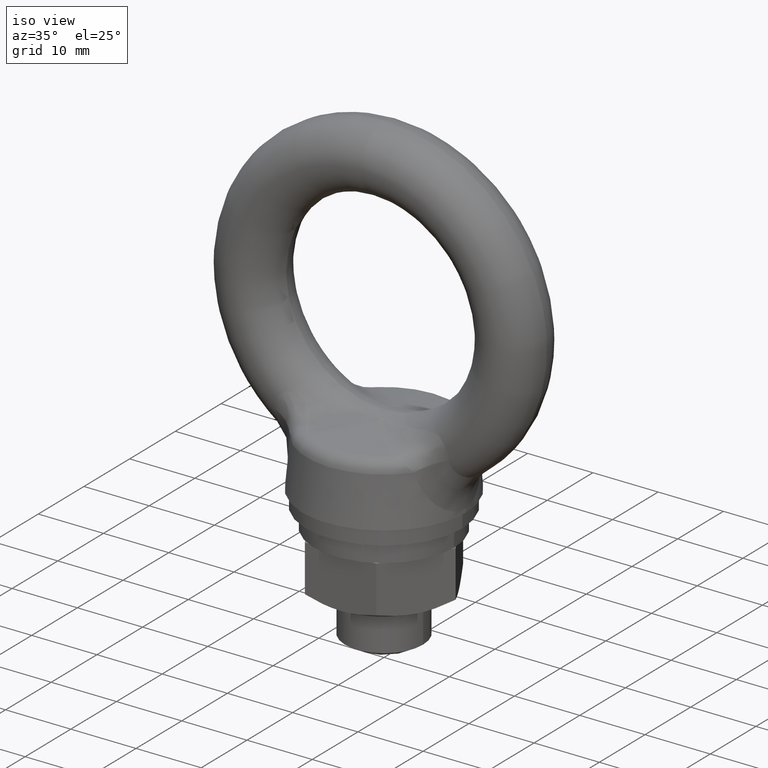
[diagram: clean part render]
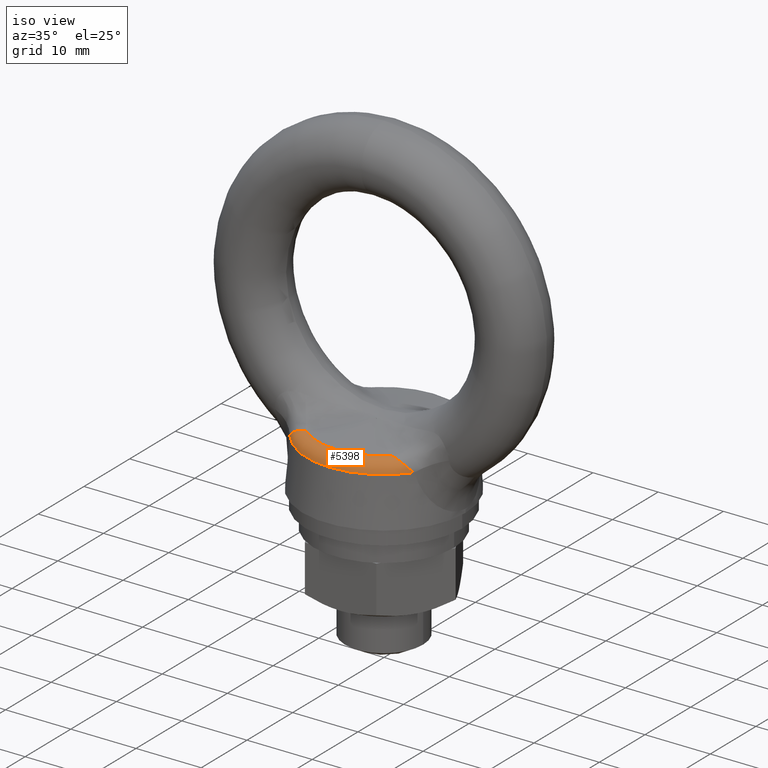
[diagram: same view with one face highlighted and labeled with its STEP entity id]
A machine part, iso view. The second image highlights one B-rep face of the part: STEP entity #5398.
In plain terms, the highlighted toroidal blend (fillet) surface has major radius 9.8547 mm and minor (blend) radius 2 mm.
Its self-contained STEP definition (entity closure, byte-faithful):
#449 = DIRECTION ( 'NONE',  ( 0.0000000000000000000, 0.0000000000000000000, 1.000000000000000000 ) ) ;
#450 = CARTESIAN_POINT ( 'NONE',  ( 0.0000000000000000000, 0.0000000000000000000, -16.74023616556295100 ) ) ;
#451 = AXIS2_PLACEMENT_3D ( 'NONE', #450, #449, #481 ) ;
#452 = CIRCLE ( 'NONE', #451, 10.19135768220194100 ) ;
#453 = DIRECTION ( 'NONE',  ( 1.000000000000000000, 0.0000000000000000000, 0.0000000000000000000 ) ) ;
#454 = DIRECTION ( 'NONE',  ( 0.0000000000000000000, 0.0000000000000000000, 1.000000000000000000 ) ) ;
#479 = CARTESIAN_POINT ( 'NONE',  ( 6.616645683539579700, -7.751372220779610500, -16.74023616556295100 ) ) ;
#480 = CARTESIAN_POINT ( 'NONE',  ( -6.616645683539579700, -7.751372220779610500, -16.74023616556295100 ) ) ;
#481 = DIRECTION ( 'NONE',  ( 1.000000000000000000, 0.0000000000000000000, 0.0000000000000000000 ) ) ;
#536 = CARTESIAN_POINT ( 'NONE',  ( 0.0000000000000000000, 0.0000000000000000000, -18.71170104866870100 ) ) ;
#537 = AXIS2_PLACEMENT_3D ( 'NONE', #536, #454, #453 ) ;
#538 = TOROIDAL_SURFACE ( 'NONE', #537, 9.854718090530131000, 2.000000000000000000 ) ;
#539 = FACE_OUTER_BOUND ( 'NONE', #5399, .T. ) ;
#1253 = CARTESIAN_POINT ( 'NONE',  ( -9.537127817778650000, -7.028310572481229800, -18.53738990767994800 ) ) ;
#1254 = DIRECTION ( 'NONE',  ( 1.000000000000000000, 0.0000000000000000000, 0.0000000000000000000 ) ) ;
#1255 = DIRECTION ( 'NONE',  ( 0.0000000000000000000, 0.0000000000000000000, -1.000000000000000000 ) ) ;
#1256 = CARTESIAN_POINT ( 'NONE',  ( 0.0000000000000000000, 0.0000000000000000000, -18.53738990767994800 ) ) ;
#1257 = AXIS2_PLACEMENT_3D ( 'NONE', #1256, #1255, #1254 ) ;
#1258 = CIRCLE ( 'NONE', #1257, 11.84710751685402000 ) ;
#1263 = CARTESIAN_POINT ( 'NONE',  ( 9.537127817778650000, -7.028310572481229800, -18.53738990767994800 ) ) ;
#2501 = CARTESIAN_POINT ( 'NONE',  ( -9.537127817778650000, -7.028310572481229800, -18.53738990767994800 ) ) ;
#2502 = CARTESIAN_POINT ( 'NONE',  ( -9.387530256854034900, -7.200739040392232200, -18.33010265895204000 ) ) ;
#2503 = CARTESIAN_POINT ( 'NONE',  ( -9.210486901524483000, -7.346946296539043100, -18.12853105271439000 ) ) ;
#2504 = CARTESIAN_POINT ( 'NONE',  ( -8.799428681623485500, -7.581588835471430700, -17.73487168706547500 ) ) ;
#2505 = CARTESIAN_POINT ( 'NONE',  ( -8.571014422538098600, -7.666058305876177300, -17.54837710882584300 ) ) ;
#2506 = CARTESIAN_POINT ( 'NONE',  ( -8.066797062893675400, -7.765780834802571400, -17.21041175693599000 ) ) ;
#2507 = CARTESIAN_POINT ( 'NONE',  ( -7.796735016101216300, -7.777521810739974800, -17.06314503767733700 ) ) ;
#2508 = CARTESIAN_POINT ( 'NONE',  ( -7.222409335276565500, -7.762224530899469100, -16.84144719434066300 ) ) ;
#2509 = CARTESIAN_POINT ( 'NONE',  ( -6.923499156298799300, -7.738500842341252900, -16.77258283896321000 ) ) ;
#2510 = CARTESIAN_POINT ( 'NONE',  ( -6.616645683539579700, -7.751372220779610500, -16.74023616556295100 ) ) ;
#2511 = B_SPLINE_CURVE_WITH_KNOTS ( 'NONE', 3,
 ( #2510, #2509, #2508, #2507, #2506, #2505, #2504, #2503, #2502, #2501 ),
 .UNSPECIFIED., .F., .F.,
 ( 4, 2, 2, 2, 4 ),
 ( 0.0000000000000000000, 0.0009180277221817911200, 0.001836055444363582200, 0.002754083166545373500, 0.003672110888727164500 ),
 .UNSPECIFIED. ) ;
#5398 = ADVANCED_FACE ( 'NONE', ( #539 ), #538, .T. ) ;
#5399 = EDGE_LOOP ( 'NONE', ( #5489, #5490, #5492, #5429 ) ) ;
#5400 = EDGE_CURVE ( 'NONE', #5401, #5402, #452, .T. ) ;
#5401 = VERTEX_POINT ( 'NONE', #480 ) ;
#5402 = VERTEX_POINT ( 'NONE', #479 ) ;
#5429 = ORIENTED_EDGE ( 'NONE', *, *, #5430, .T. ) ;
#5430 = EDGE_CURVE ( 'NONE', #5460, #5402, #8960, .T. ) ;
#5460 = VERTEX_POINT ( 'NONE', #1263 ) ;
#5462 = EDGE_CURVE ( 'NONE', #5460, #5463, #1258, .T. ) ;
#5463 = VERTEX_POINT ( 'NONE', #1253 ) ;
#5489 = ORIENTED_EDGE ( 'NONE', *, *, #5400, .F. ) ;
#5490 = ORIENTED_EDGE ( 'NONE', *, *, #5491, .T. ) ;
#5491 = EDGE_CURVE ( 'NONE', #5401, #5463, #2511, .T. ) ;
#5492 = ORIENTED_EDGE ( 'NONE', *, *, #5462, .F. ) ;
#8958 = CARTESIAN_POINT ( 'NONE',  ( 9.387522268440289300, -7.200748247961763900, -18.33009158994598300 ) ) ;
#8959 = CARTESIAN_POINT ( 'NONE',  ( 9.537127817778650000, -7.028310572481229800, -18.53738990767994800 ) ) ;
#8960 = B_SPLINE_CURVE_WITH_KNOTS ( 'NONE', 3,
 ( #8959, #8958, #8977, #8976, #8975, #8974, #8973, #8972, #8971, #8970 ),
 .UNSPECIFIED., .F., .F.,
 ( 4, 2, 2, 2, 4 ),
 ( 0.0000000000000000000, 0.0009182618126528876600, 0.001836523625305775300, 0.002754785437958662900, 0.003673047250611550600 ),
 .UNSPECIFIED. ) ;
#8970 = CARTESIAN_POINT ( 'NONE',  ( 6.616645683539579700, -7.751372220779610500, -16.74023616556295100 ) ) ;
#8971 = CARTESIAN_POINT ( 'NONE',  ( 6.923536939672071200, -7.738499257467236900, -16.77258682186235800 ) ) ;
#8972 = CARTESIAN_POINT ( 'NONE',  ( 7.220833170998764300, -7.762129287149928600, -16.84098851945652300 ) ) ;
#8973 = CARTESIAN_POINT ( 'NONE',  ( 7.795344199665845700, -7.777537753763227500, -17.06245918736233200 ) ) ;
#8974 = CARTESIAN_POINT ( 'NONE',  ( 8.064455806298802500, -7.766045287932594300, -17.20901753217262000 ) ) ;
#8975 = CARTESIAN_POINT ( 'NONE',  ( 8.569531378380171200, -7.666548712571969100, -17.54720931299321800 ) ) ;
#8976 = CARTESIAN_POINT ( 'NONE',  ( 8.798143532339464600, -7.582158117612705100, -17.73375969154130200 ) ) ;
#8977 = CARTESIAN_POINT ( 'NONE',  ( 9.209579712991390100, -7.347627583470810500, -18.12754413669953000 ) ) ;